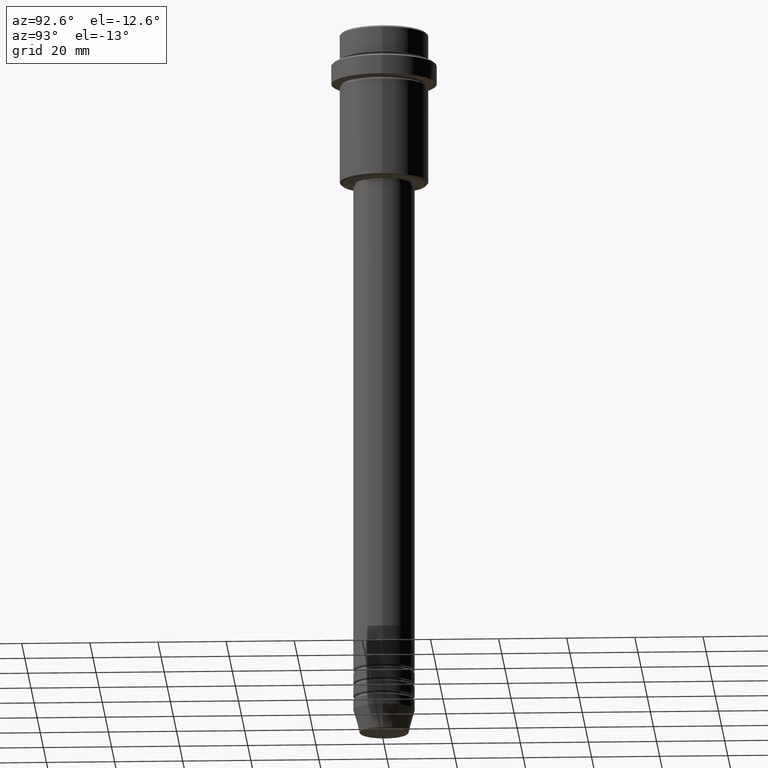
[diagram: clean part render]
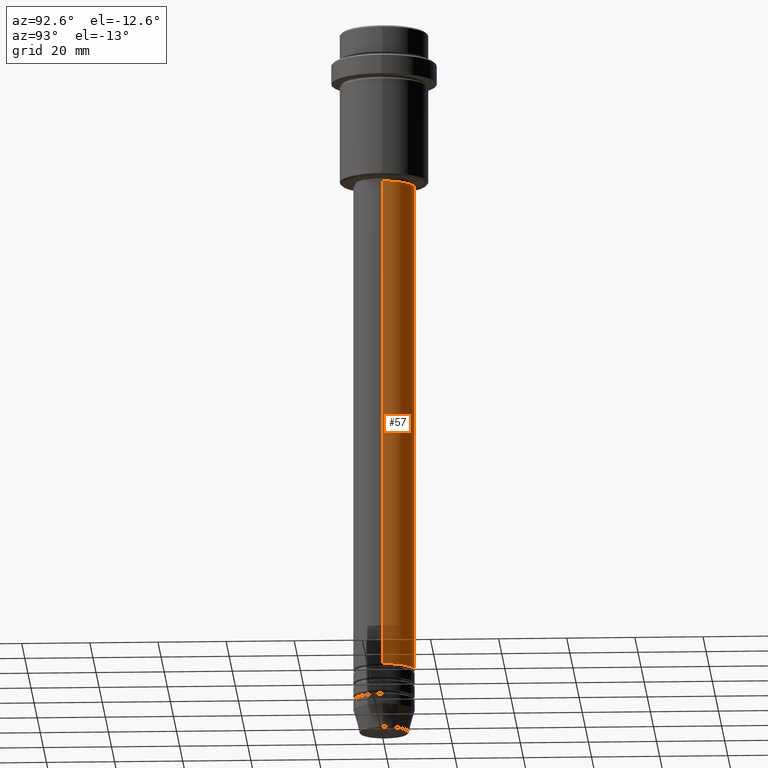
[diagram: same view with one face highlighted and labeled with its STEP entity id]
A machine part, auxiliary view. The second image highlights one B-rep face of the part: STEP entity #57.
In plain terms, the highlighted cylindrical surface (edge-blend (fillet) strip) has radius 9 mm, axis along (-0, -0, 1).
Its self-contained STEP definition (entity closure, byte-faithful):
#57 = ADVANCED_FACE ( 'NONE', ( #905 ), #1209, .T. ) ;
#67 = VERTEX_POINT ( 'NONE', #1012 ) ;
#203 = ORIENTED_EDGE ( 'NONE', *, *, #269, .F. ) ;
#216 = DIRECTION ( 'NONE',  ( -0.000000000000000000, -0.000000000000000000, 1.000000000000000000 ) ) ;
#220 = DIRECTION ( 'NONE',  ( -0.000000000000000000, -0.000000000000000000, 1.000000000000000000 ) ) ;
#230 = DIRECTION ( 'NONE',  ( -0.000000000000000000, -0.000000000000000000, 1.000000000000000000 ) ) ;
#267 = DIRECTION ( 'NONE',  ( 1.000000000000000000, 0.000000000000000000, 0.000000000000000000 ) ) ;
#269 = EDGE_CURVE ( 'NONE', #67, #1391, #1178, .T. ) ;
#278 = DIRECTION ( 'NONE',  ( -0.000000000000000000, -0.000000000000000000, 1.000000000000000000 ) ) ;
#340 = EDGE_CURVE ( 'NONE', #1279, #67, #654, .T. ) ;
#396 = DIRECTION ( 'NONE',  ( -0.000000000000000000, -0.000000000000000000, 1.000000000000000000 ) ) ;
#398 = AXIS2_PLACEMENT_3D ( 'NONE', #1216, #230, #267 ) ;
#405 = ORIENTED_EDGE ( 'NONE', *, *, #663, .T. ) ;
#416 = CARTESIAN_POINT ( 'NONE',  ( -9.000000000000001776, 1.102182119232617911E-15, 0.000000000000000000 ) ) ;
#518 = CARTESIAN_POINT ( 'NONE',  ( 9.000000000000000000, 0.000000000000000000, -190.9999999999998863 ) ) ;
#536 = CARTESIAN_POINT ( 'NONE',  ( 9.000000000000001776, 0.000000000000000000, 0.000000000000000000 ) ) ;
#566 = ORIENTED_EDGE ( 'NONE', *, *, #340, .F. ) ;
#629 = EDGE_LOOP ( 'NONE', ( #405, #922, #203, #566 ) ) ;
#654 = LINE ( 'NONE', #536, #1241 ) ;
#663 = EDGE_CURVE ( 'NONE', #1279, #1050, #1224, .T. ) ;
#680 = CARTESIAN_POINT ( 'NONE',  ( -9.000000000000001776, 1.102182119232617911E-15, -46.00000000000001421 ) ) ;
#709 = DIRECTION ( 'NONE',  ( 1.000000000000000000, 0.000000000000000000, 0.000000000000000000 ) ) ;
#735 = CARTESIAN_POINT ( 'NONE',  ( 0.000000000000000000, 0.000000000000000000, -46.00000000000001421 ) ) ;
#762 = LINE ( 'NONE', #416, #956 ) ;
#835 = AXIS2_PLACEMENT_3D ( 'NONE', #955, #278, #709 ) ;
#861 = AXIS2_PLACEMENT_3D ( 'NONE', #735, #396, #1261 ) ;
#901 = CARTESIAN_POINT ( 'NONE',  ( -9.000000000000000000, 1.102182119232617714E-15, -190.9999999999998863 ) ) ;
#905 = FACE_OUTER_BOUND ( 'NONE', #629, .T. ) ;
#922 = ORIENTED_EDGE ( 'NONE', *, *, #1245, .T. ) ;
#955 = CARTESIAN_POINT ( 'NONE',  ( 0.000000000000000000, 0.000000000000000000, -190.9999999999998863 ) ) ;
#956 = VECTOR ( 'NONE', #216, 1000.000000000000000 ) ;
#1012 = CARTESIAN_POINT ( 'NONE',  ( 9.000000000000001776, 0.000000000000000000, -46.00000000000001421 ) ) ;
#1050 = VERTEX_POINT ( 'NONE', #901 ) ;
#1178 = CIRCLE ( 'NONE', #861, 9.000000000000001776 ) ;
#1209 = CYLINDRICAL_SURFACE ( 'NONE', #398, 9.000000000000001776 ) ;
#1216 = CARTESIAN_POINT ( 'NONE',  ( 0.000000000000000000, 0.000000000000000000, 0.000000000000000000 ) ) ;
#1224 = CIRCLE ( 'NONE', #835, 9.000000000000000000 ) ;
#1241 = VECTOR ( 'NONE', #220, 1000.000000000000000 ) ;
#1245 = EDGE_CURVE ( 'NONE', #1050, #1391, #762, .T. ) ;
#1261 = DIRECTION ( 'NONE',  ( 1.000000000000000000, 0.000000000000000000, 0.000000000000000000 ) ) ;
#1279 = VERTEX_POINT ( 'NONE', #518 ) ;
#1391 = VERTEX_POINT ( 'NONE', #680 ) ;